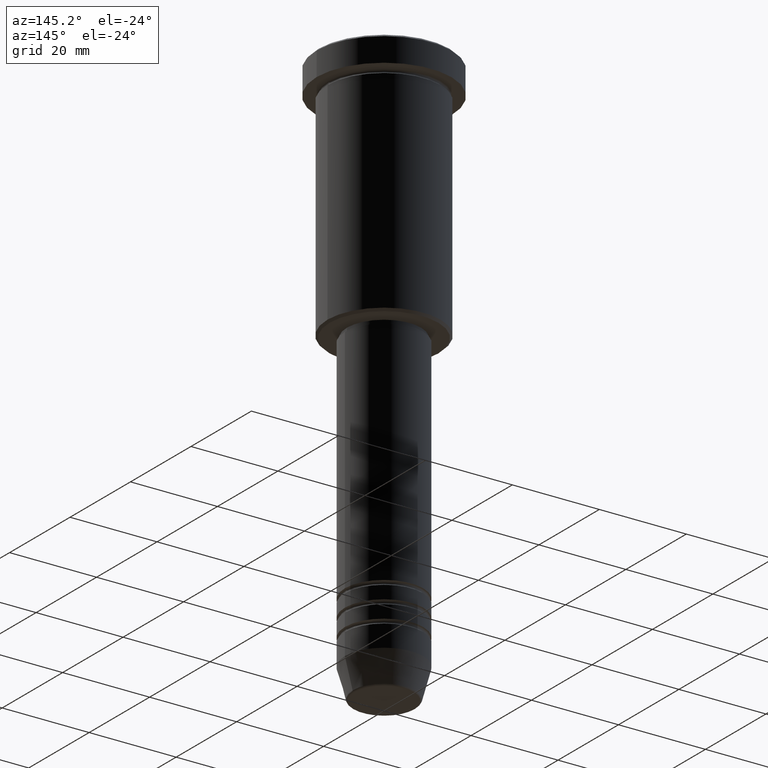
[diagram: clean part render]
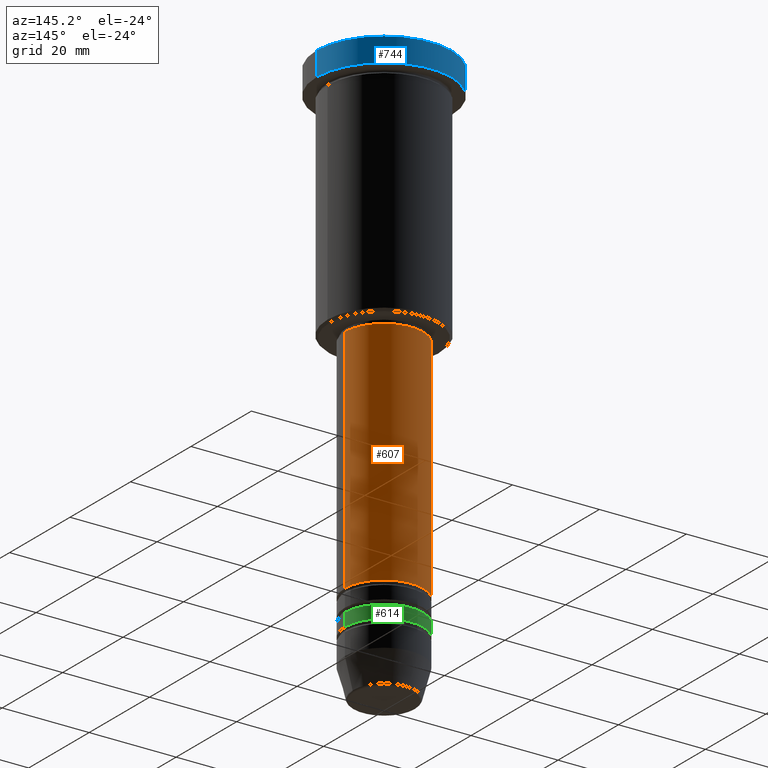
[diagram: same view with three faces highlighted in distinct colors, each labeled with its STEP entity id]
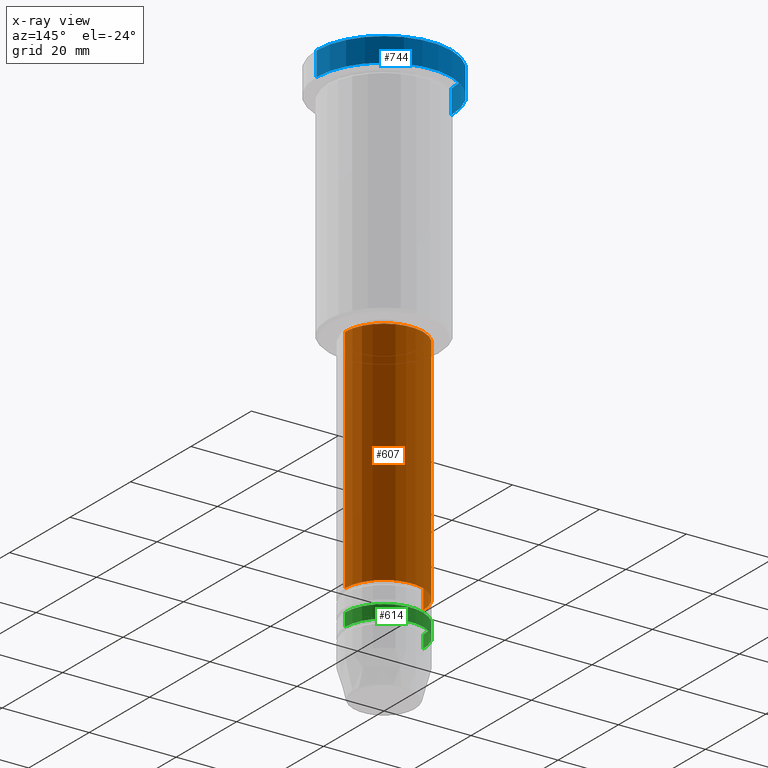
[diagram: x-ray of the same camera — body ghosted, the three highlighted faces saturated]
A machine part, auxiliary view with three faces highlighted in distinct colors.
The next image is the same camera in x-ray (body ghosted, the three faces saturated) — at least one of them is partly hidden behind the body in this view.
Their STEP definitions:

[orange] entity #607 — the highlighted cylindrical surface (partial cylindrical patch) has radius 9 mm, axis along (-0, -0, 1).
#15 = DIRECTION ( 'NONE',  ( -0.000000000000000000, -0.000000000000000000, 1.000000000000000000 ) ) ;
#40 = EDGE_CURVE ( 'NONE', #921, #897, #754, .T. ) ;
#165 = AXIS2_PLACEMENT_3D ( 'NONE', #968, #315, #859 ) ;
#224 = CARTESIAN_POINT ( 'NONE',  ( -9.000000000000001776, 1.102182119232617911E-15, -109.9999999999998863 ) ) ;
#227 = CARTESIAN_POINT ( 'NONE',  ( 9.000000000000001776, 0.000000000000000000, -109.9999999999998863 ) ) ;
#263 = DIRECTION ( 'NONE',  ( 1.000000000000000000, 0.000000000000000000, 0.000000000000000000 ) ) ;
#315 = DIRECTION ( 'NONE',  ( -0.000000000000000000, -0.000000000000000000, 1.000000000000000000 ) ) ;
#321 = CARTESIAN_POINT ( 'NONE',  ( -8.999999999999998224, 1.102182119232617714E-15, -56.99999999999998579 ) ) ;
#322 = CARTESIAN_POINT ( 'NONE',  ( -9.000000000000000000, 1.102182119232617714E-15, 0.000000000000000000 ) ) ;
#435 = VECTOR ( 'NONE', #464, 1000.000000000000000 ) ;
#459 = ORIENTED_EDGE ( 'NONE', *, *, #790, .T. ) ;
#464 = DIRECTION ( 'NONE',  ( -0.000000000000000000, -0.000000000000000000, 1.000000000000000000 ) ) ;
#533 = VECTOR ( 'NONE', #680, 1000.000000000000000 ) ;
#568 = CARTESIAN_POINT ( 'NONE',  ( 9.000000000000000000, 0.000000000000000000, 0.000000000000000000 ) ) ;
#607 = ADVANCED_FACE ( 'NONE', ( #733 ), #1162, .T. ) ;
#619 = ORIENTED_EDGE ( 'NONE', *, *, #40, .F. ) ;
#626 = EDGE_LOOP ( 'NONE', ( #459, #1077, #1033, #619 ) ) ;
#658 = CARTESIAN_POINT ( 'NONE',  ( 0.000000000000000000, 0.000000000000000000, -109.9999999999998863 ) ) ;
#669 = VERTEX_POINT ( 'NONE', #224 ) ;
#680 = DIRECTION ( 'NONE',  ( -0.000000000000000000, -0.000000000000000000, 1.000000000000000000 ) ) ;
#705 = CARTESIAN_POINT ( 'NONE',  ( 0.000000000000000000, 0.000000000000000000, 0.000000000000000000 ) ) ;
#733 = FACE_OUTER_BOUND ( 'NONE', #626, .T. ) ;
#739 = AXIS2_PLACEMENT_3D ( 'NONE', #705, #15, #263 ) ;
#754 = LINE ( 'NONE', #568, #435 ) ;
#764 = EDGE_CURVE ( 'NONE', #669, #1117, #1118, .T. ) ;
#790 = EDGE_CURVE ( 'NONE', #921, #669, #838, .T. ) ;
#838 = CIRCLE ( 'NONE', #976, 9.000000000000001776 ) ;
#859 = DIRECTION ( 'NONE',  ( 1.000000000000000000, 0.000000000000000000, 0.000000000000000000 ) ) ;
#897 = VERTEX_POINT ( 'NONE', #954 ) ;
#921 = VERTEX_POINT ( 'NONE', #227 ) ;
#954 = CARTESIAN_POINT ( 'NONE',  ( 8.999999999999998224, 0.000000000000000000, -56.99999999999998579 ) ) ;
#968 = CARTESIAN_POINT ( 'NONE',  ( 0.000000000000000000, 0.000000000000000000, -56.99999999999998579 ) ) ;
#976 = AXIS2_PLACEMENT_3D ( 'NONE', #658, #1032, #1024 ) ;
#1024 = DIRECTION ( 'NONE',  ( 1.000000000000000000, 0.000000000000000000, 0.000000000000000000 ) ) ;
#1032 = DIRECTION ( 'NONE',  ( -0.000000000000000000, -0.000000000000000000, 1.000000000000000000 ) ) ;
#1033 = ORIENTED_EDGE ( 'NONE', *, *, #1100, .F. ) ;
#1077 = ORIENTED_EDGE ( 'NONE', *, *, #764, .T. ) ;
#1100 = EDGE_CURVE ( 'NONE', #897, #1117, #1152, .T. ) ;
#1117 = VERTEX_POINT ( 'NONE', #321 ) ;
#1118 = LINE ( 'NONE', #322, #533 ) ;
#1152 = CIRCLE ( 'NONE', #165, 8.999999999999998224 ) ;
#1162 = CYLINDRICAL_SURFACE ( 'NONE', #739, 9.000000000000000000 ) ;

[blue] entity #744 — the highlighted cylindrical surface (partial cylindrical patch) has radius 15.5 mm, axis along (-0, -0, 1).
#42 = CARTESIAN_POINT ( 'NONE',  ( -15.50000000000000000, 1.898202538678397557E-15, 0.000000000000000000 ) ) ;
#88 = CARTESIAN_POINT ( 'NONE',  ( 15.50000000000000000, 0.000000000000000000, 0.000000000000000000 ) ) ;
#135 = DIRECTION ( 'NONE',  ( -0.000000000000000000, -0.000000000000000000, 1.000000000000000000 ) ) ;
#149 = CARTESIAN_POINT ( 'NONE',  ( 15.50000000000000000, 0.000000000000000000, -0.4999999999999709677 ) ) ;
#246 = CARTESIAN_POINT ( 'NONE',  ( 0.000000000000000000, 0.000000000000000000, -0.4999999999999709677 ) ) ;
#295 = CIRCLE ( 'NONE', #806, 15.50000000000000000 ) ;
#316 = DIRECTION ( 'NONE',  ( -0.000000000000000000, -0.000000000000000000, 1.000000000000000000 ) ) ;
#345 = DIRECTION ( 'NONE',  ( 1.000000000000000000, 0.000000000000000000, 0.000000000000000000 ) ) ;
#393 = EDGE_LOOP ( 'NONE', ( #413, #660, #447, #643 ) ) ;
#399 = DIRECTION ( 'NONE',  ( 1.000000000000000000, 0.000000000000000000, 0.000000000000000000 ) ) ;
#405 = CARTESIAN_POINT ( 'NONE',  ( 0.000000000000000000, 0.000000000000000000, 0.000000000000000000 ) ) ;
#413 = ORIENTED_EDGE ( 'NONE', *, *, #720, .T. ) ;
#445 = VECTOR ( 'NONE', #652, 1000.000000000000000 ) ;
#447 = ORIENTED_EDGE ( 'NONE', *, *, #514, .T. ) ;
#488 = CARTESIAN_POINT ( 'NONE',  ( 0.000000000000000000, 0.000000000000000000, -5.999999999999995559 ) ) ;
#514 = EDGE_CURVE ( 'NONE', #746, #1139, #295, .T. ) ;
#526 = EDGE_CURVE ( 'NONE', #1125, #1139, #1079, .T. ) ;
#553 = VERTEX_POINT ( 'NONE', #931 ) ;
#579 = CARTESIAN_POINT ( 'NONE',  ( 15.50000000000000000, 0.000000000000000000, -5.999999999999995559 ) ) ;
#594 = LINE ( 'NONE', #42, #1183 ) ;
#601 = DIRECTION ( 'NONE',  ( 0.000000000000000000, 0.000000000000000000, -1.000000000000000000 ) ) ;
#609 = AXIS2_PLACEMENT_3D ( 'NONE', #405, #847, #767 ) ;
#643 = ORIENTED_EDGE ( 'NONE', *, *, #526, .F. ) ;
#652 = DIRECTION ( 'NONE',  ( -0.000000000000000000, -0.000000000000000000, 1.000000000000000000 ) ) ;
#660 = ORIENTED_EDGE ( 'NONE', *, *, #729, .T. ) ;
#720 = EDGE_CURVE ( 'NONE', #1125, #553, #802, .T. ) ;
#729 = EDGE_CURVE ( 'NONE', #553, #746, #594, .T. ) ;
#744 = ADVANCED_FACE ( 'NONE', ( #1137 ), #940, .T. ) ;
#746 = VERTEX_POINT ( 'NONE', #747 ) ;
#747 = CARTESIAN_POINT ( 'NONE',  ( -15.50000000000000000, 1.898202538678397557E-15, -0.4999999999999709677 ) ) ;
#767 = DIRECTION ( 'NONE',  ( 1.000000000000000000, 0.000000000000000000, 0.000000000000000000 ) ) ;
#802 = CIRCLE ( 'NONE', #817, 15.50000000000000000 ) ;
#806 = AXIS2_PLACEMENT_3D ( 'NONE', #246, #601, #345 ) ;
#817 = AXIS2_PLACEMENT_3D ( 'NONE', #488, #316, #399 ) ;
#847 = DIRECTION ( 'NONE',  ( -0.000000000000000000, -0.000000000000000000, 1.000000000000000000 ) ) ;
#931 = CARTESIAN_POINT ( 'NONE',  ( -15.50000000000000000, 1.898202538678397557E-15, -5.999999999999995559 ) ) ;
#940 = CYLINDRICAL_SURFACE ( 'NONE', #609, 15.50000000000000000 ) ;
#1079 = LINE ( 'NONE', #88, #445 ) ;
#1125 = VERTEX_POINT ( 'NONE', #579 ) ;
#1137 = FACE_OUTER_BOUND ( 'NONE', #393, .T. ) ;
#1139 = VERTEX_POINT ( 'NONE', #149 ) ;
#1183 = VECTOR ( 'NONE', #135, 1000.000000000000000 ) ;

[green] entity #614 — the highlighted cylindrical surface (partial cylindrical patch) has radius 9 mm, axis along (-0, -0, 1).
#31 = CARTESIAN_POINT ( 'NONE',  ( -9.000000000000000000, 1.102182119232617714E-15, -114.9999999999998863 ) ) ;
#87 = LINE ( 'NONE', #1001, #1049 ) ;
#95 = AXIS2_PLACEMENT_3D ( 'NONE', #1119, #928, #113 ) ;
#113 = DIRECTION ( 'NONE',  ( 1.000000000000000000, 0.000000000000000000, 0.000000000000000000 ) ) ;
#130 = VERTEX_POINT ( 'NONE', #748 ) ;
#137 = EDGE_CURVE ( 'NONE', #130, #656, #189, .T. ) ;
#155 = DIRECTION ( 'NONE',  ( -0.000000000000000000, -0.000000000000000000, 1.000000000000000000 ) ) ;
#172 = DIRECTION ( 'NONE',  ( 1.000000000000000000, 0.000000000000000000, 0.000000000000000000 ) ) ;
#189 = CIRCLE ( 'NONE', #95, 9.000000000000000000 ) ;
#198 = ORIENTED_EDGE ( 'NONE', *, *, #860, .T. ) ;
#203 = EDGE_CURVE ( 'NONE', #306, #558, #1027, .T. ) ;
#267 = DIRECTION ( 'NONE',  ( -0.000000000000000000, -0.000000000000000000, 1.000000000000000000 ) ) ;
#306 = VERTEX_POINT ( 'NONE', #810 ) ;
#325 = EDGE_CURVE ( 'NONE', #306, #130, #87, .T. ) ;
#350 = FACE_OUTER_BOUND ( 'NONE', #462, .T. ) ;
#388 = ORIENTED_EDGE ( 'NONE', *, *, #325, .F. ) ;
#462 = EDGE_LOOP ( 'NONE', ( #1093, #198, #1026, #388 ) ) ;
#498 = VECTOR ( 'NONE', #155, 1000.000000000000000 ) ;
#558 = VERTEX_POINT ( 'NONE', #811 ) ;
#587 = DIRECTION ( 'NONE',  ( 1.000000000000000000, 0.000000000000000000, 0.000000000000000000 ) ) ;
#599 = LINE ( 'NONE', #969, #498 ) ;
#614 = ADVANCED_FACE ( 'NONE', ( #350 ), #982, .T. ) ;
#656 = VERTEX_POINT ( 'NONE', #31 ) ;
#668 = AXIS2_PLACEMENT_3D ( 'NONE', #800, #267, #172 ) ;
#687 = DIRECTION ( 'NONE',  ( -0.000000000000000000, -0.000000000000000000, 1.000000000000000000 ) ) ;
#748 = CARTESIAN_POINT ( 'NONE',  ( 9.000000000000000000, 0.000000000000000000, -114.9999999999998863 ) ) ;
#800 = CARTESIAN_POINT ( 'NONE',  ( 0.000000000000000000, 0.000000000000000000, 0.000000000000000000 ) ) ;
#810 = CARTESIAN_POINT ( 'NONE',  ( 9.000000000000001776, 0.000000000000000000, -117.9999999999998863 ) ) ;
#811 = CARTESIAN_POINT ( 'NONE',  ( -9.000000000000001776, 1.102182119232617911E-15, -117.9999999999998863 ) ) ;
#826 = DIRECTION ( 'NONE',  ( -0.000000000000000000, -0.000000000000000000, 1.000000000000000000 ) ) ;
#860 = EDGE_CURVE ( 'NONE', #558, #656, #599, .T. ) ;
#928 = DIRECTION ( 'NONE',  ( -0.000000000000000000, -0.000000000000000000, 1.000000000000000000 ) ) ;
#935 = AXIS2_PLACEMENT_3D ( 'NONE', #948, #687, #587 ) ;
#948 = CARTESIAN_POINT ( 'NONE',  ( 0.000000000000000000, 0.000000000000000000, -117.9999999999998863 ) ) ;
#969 = CARTESIAN_POINT ( 'NONE',  ( -9.000000000000001776, 1.102182119232617911E-15, 0.000000000000000000 ) ) ;
#982 = CYLINDRICAL_SURFACE ( 'NONE', #668, 9.000000000000001776 ) ;
#1001 = CARTESIAN_POINT ( 'NONE',  ( 9.000000000000001776, 0.000000000000000000, 0.000000000000000000 ) ) ;
#1026 = ORIENTED_EDGE ( 'NONE', *, *, #137, .F. ) ;
#1027 = CIRCLE ( 'NONE', #935, 9.000000000000001776 ) ;
#1049 = VECTOR ( 'NONE', #826, 1000.000000000000000 ) ;
#1093 = ORIENTED_EDGE ( 'NONE', *, *, #203, .T. ) ;
#1119 = CARTESIAN_POINT ( 'NONE',  ( 0.000000000000000000, 0.000000000000000000, -114.9999999999998863 ) ) ;